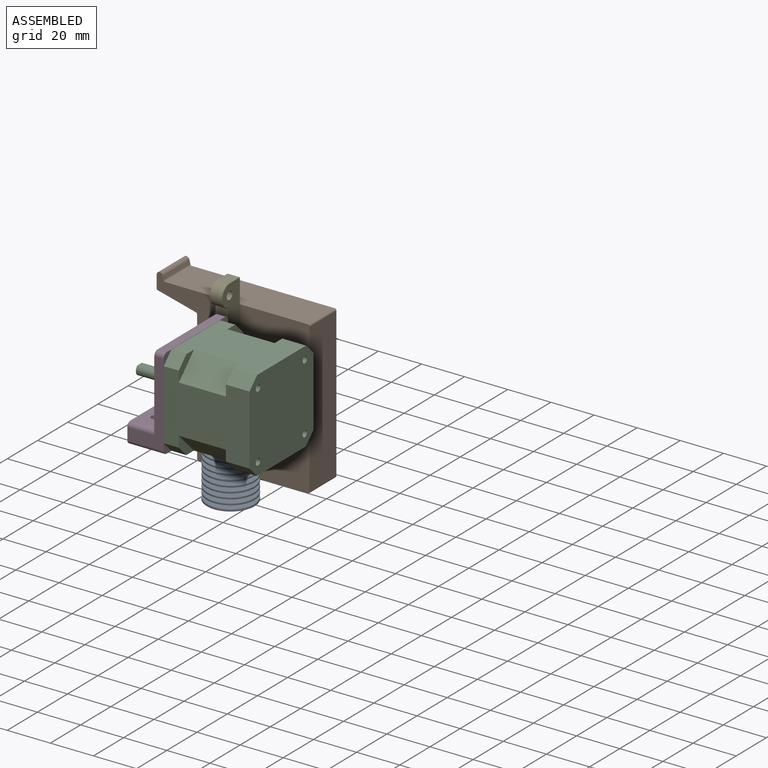
[diagram: assembled view]
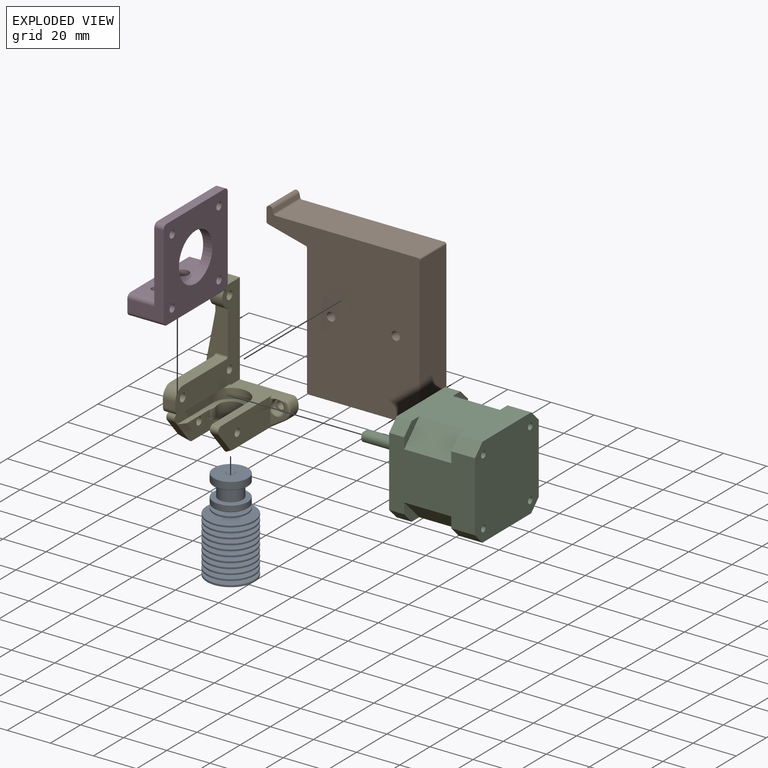
[diagram: exploded view]
GUIDED TOUR — MATED ASSEMBLY (Onshape document 1d870d6aa7221018737a88e3, AutoMate assembly 1d870d6aa7221018737a88e3_152bcbe4f24b7e919ed876c8_dd06332e72fe1bd58ef9c4aa_default)

This assembly has 5 components, labeled P0..P4 below (a component is one placed occurrence of a part; the same part can appear more than once), held together by 4 mates. A mate is a constraint between two components; its type names the relative motion it leaves free:
  FASTENED — locks the two components together rigidly (no relative motion).
Axis/direction vectors are unit vectors and 'through' points are millimeter coordinates, both in the assembly's world frame.

MATES
  1. FASTENED "Fastened 2": P4 <-> P3, direction (1.000, 0.000, 0.000) through (-53.84, -23.91, 33.60) mm
  2. FASTENED "Fastened 1": P0 <-> P4, direction (0.000, 0.000, 1.000) through (-47.59, -1.11, 20.00) mm
  3. FASTENED "Fastened 4": P3 <-> P2, direction (1.000, 0.000, 0.000) through (-37.04, -23.91, 33.60) mm
  4. FASTENED "Fastened 3": P1 <-> P4, direction (0.000, -1.000, 0.000) through (-62.59, 13.89, 22.90) mm

ASSEMBLY ORDER
  1. P4 — the base component [order verified]
  2. P0 [order verified]
  3. P3 [order verified]
  4. P2 [order verified]
  5. P1 [order verified]
(P0 verified with a relaxed clearance tolerance: the source model stores slight part interference there.)
Order-tag legend:
  [order verified] — this step's position reverses a verified removal order: the component was checked to insert without passing through the ones already placed.

Of the 5 components, 2 carry the full construction recipe — the FeatureScript program that regenerates the part's solid from scratch; the rest are supplied as boundary geometry only.
Each toured component is shown spotlighted twice — in the assembled view, then in the exploded view, where a leader line traces a displaced component back to its assembled socket (saturated green if recipe-attached, orange if geometry-only; every other component desaturated gray) — followed by its recipe or geometry summary and the mates that hold it.
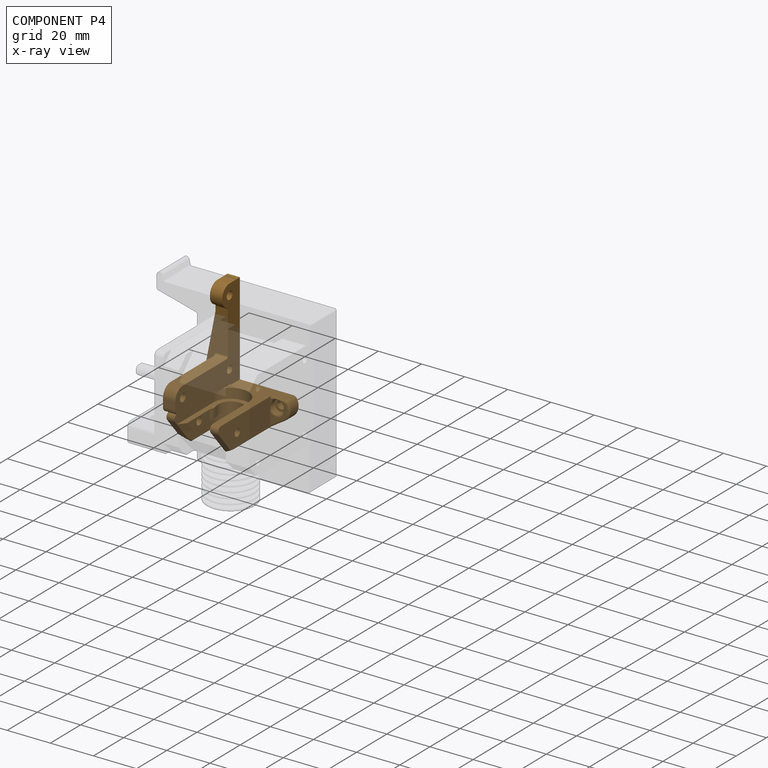
[diagram: component P4 — x-ray view]
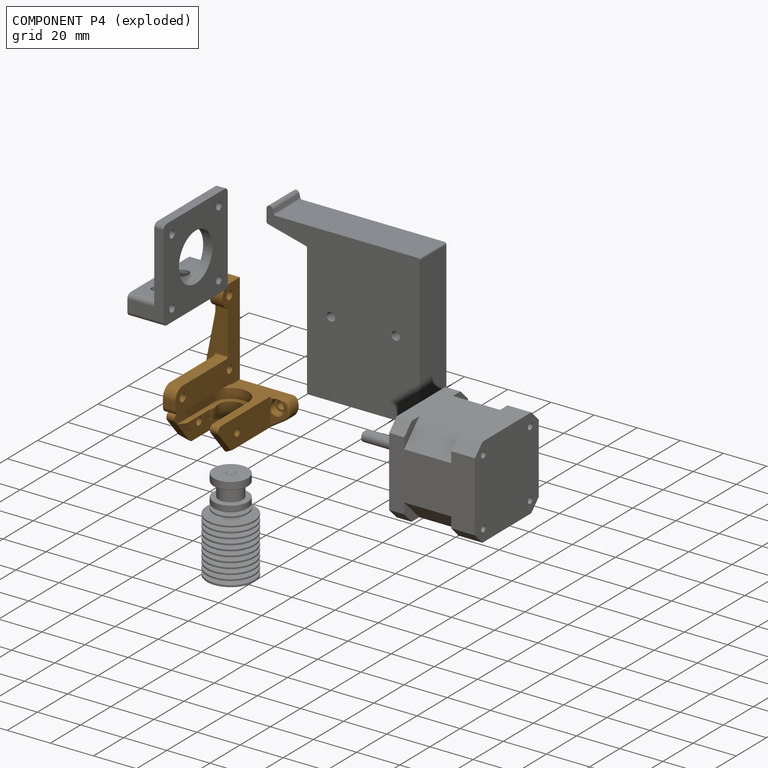
[diagram: component P4 — exploded]
COMPONENT P4 — geometry summary (no construction recipe available for this part):
  bounding box: 59.0 x 43.3 x 43.2 mm
  B-rep topology: 1 solid, 90 faces, 489 edges
  volume: 12778 mm^3 (12% of its bounding box)
Held by: FASTENED mate "Fastened 2" to P3; FASTENED mate "Fastened 1" to P0; FASTENED mate "Fastened 3" to P1.
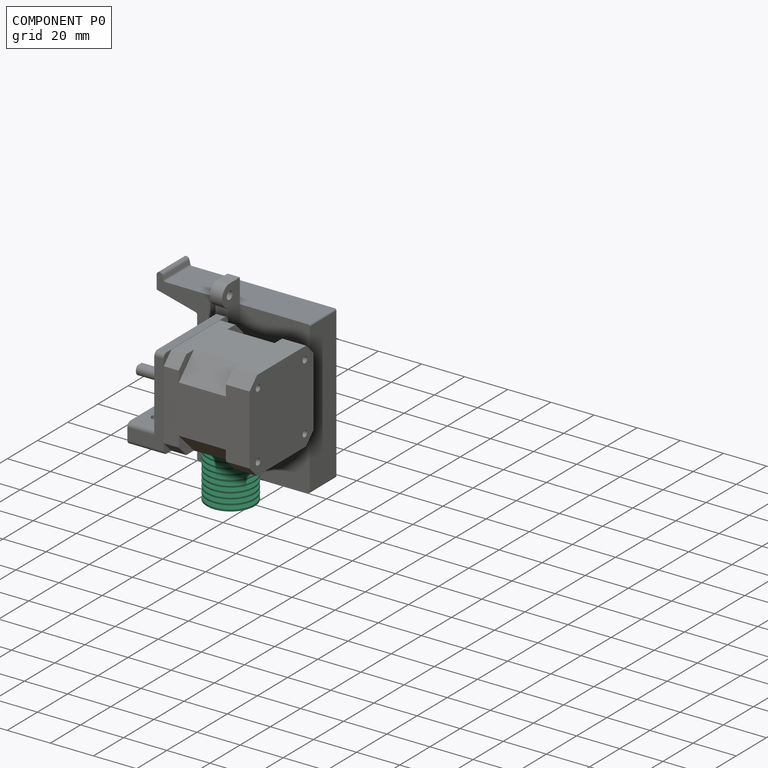
[diagram: component P0 — assembled]
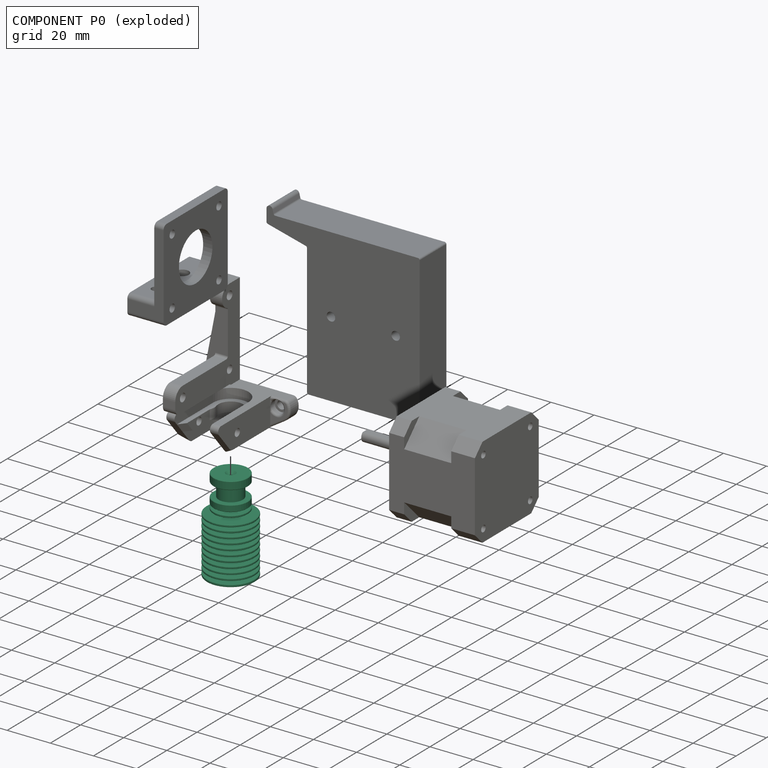
[diagram: component P0 — exploded]
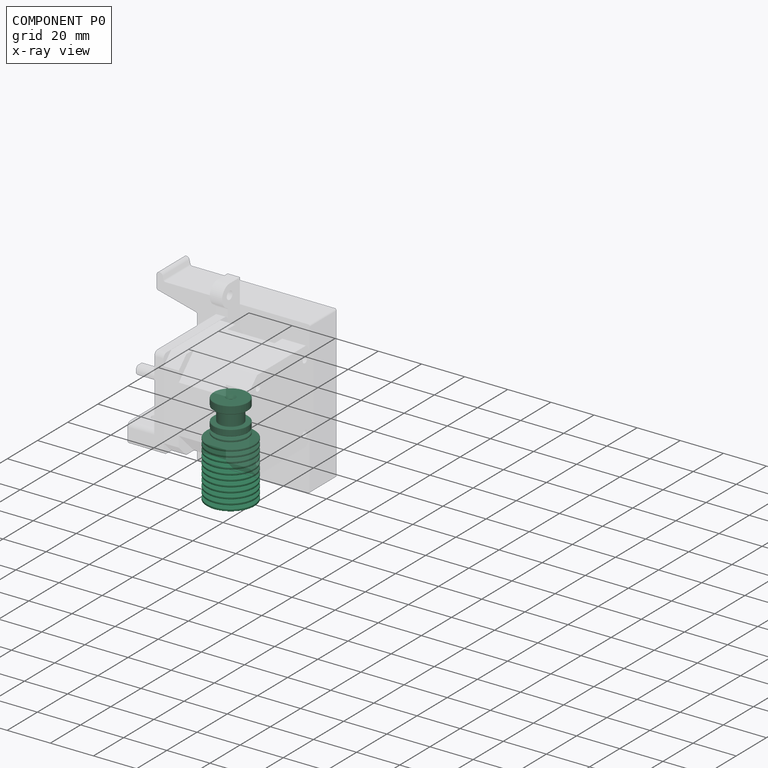
[diagram: component P0 — x-ray view]
COMPONENT P0 — recipe-attached (CADFS 00487966, mesh-verified: the recipe's output STEP matches this component's geometry to below the mesh-comparison resolution (tessellation chordal tolerance ~0.0798 mm)).
Held by: FASTENED mate "Fastened 1" to P4.
Construction recipe (FeatureScript — the CAD program that rebuilds this solid; sketch coordinates are in the units given by the * unit suffixes, e.g. mm):

FeatureScript 1560;
import(path : "onshape/std/geometry.fs", version : "1560.0");
import(path : "onshape/std/common.fs", version : "1560.0");
const mm = millimeter;
const VERTEX = EntityType.VERTEX;
const EDGE = EntityType.EDGE;
const FACE = EntityType.FACE;
const BODY = EntityType.BODY;
function v(x, y){return vector(x, y);}
function OD(order){return orderDisambiguation(order);}
function OSD(set){return originalSetDisambiguation(set);}
function TD(topology){return topologyDisambiguation(topology);}
function TDD(query){return trueDependencyDisambiguation(query);}
function sQuery(a, b, c) {return sketchEntityQuery(a, b, c);}

annotation { "Feature Type Name" : "Feature", "Feature Type Description" : "" }
export const myFeature = defineFeature(function(context is Context, id is Id, definition is map)
    precondition{}
    {
        {
            var Q0;
            Q0=qCreatedBy(makeId("Front.planeOp"),FACE);
            var sketch = newSketch(context, id + "F0", { "sketchPlane" : qUnion([Q0])});
            skLineSegment(sketch, "E0.bottom", {"start": v(11.15, 0) * mm, "end": v(-11.15, 0) * mm});
            skLineSegment(sketch, "E1", {"start": v(0, 42.9) * mm, "end": v(0, 0) * mm, "construction": true});
            skLineSegment(sketch, "E2", {"start": v(-11.15, 0) * mm, "end": v(-11.15, 1.15) * mm});
            skLineSegment(sketch, "E3", {"start": v(-11.15, 1.15) * mm, "end": v(-6.05, 1.15) * mm});
            skLineSegment(sketch, "E4", {"start": v(11.15, 1.15) * mm, "end": v(11.15, 0) * mm});
            skLineSegment(sketch, "E5.bottom", {"start": v(-11.15, 2.65) * mm, "end": v(-6.05, 2.65) * mm});
            skLineSegment(sketch, "E5.top", {"start": v(-11.15, 3.65) * mm, "end": v(-5.87, 3.65) * mm});
            skLineSegment(sketch, "E5.left", {"start": v(-11.15, 2.65) * mm, "end": v(-11.15, 3.65) * mm});
            skLineSegment(sketch, "E5.right", {"start": v(11.15, 2.65) * mm, "end": v(11.15, 3.65) * mm});
            skLineSegment(sketch, "E6", {"start": v(-6.05, 2.65) * mm, "end": v(-6.05, 1.15) * mm});
            skLineSegment(sketch, "E7", {"start": v(6.05, 2.65) * mm, "end": v(6.05, 1.15) * mm});
            skLineSegment(sketch, "E8.bottom", {"start": v(-11.15, 5.14) * mm, "end": v(-5.87, 5.14) * mm});
            skLineSegment(sketch, "E8.top", {"start": v(-11.15, 6.14) * mm, "end": v(-5.68, 6.14) * mm});
            skLineSegment(sketch, "E8.left", {"start": v(-11.15, 5.14) * mm, "end": v(-11.15, 6.14) * mm});
            skLineSegment(sketch, "E8.right", {"start": v(11.15, 5.14) * mm, "end": v(11.15, 6.14) * mm});
            skLineSegment(sketch, "E9.bottom", {"start": v(-11.15, 7.63) * mm, "end": v(-5.68, 7.63) * mm});
            skLineSegment(sketch, "E9.top", {"start": v(-11.15, 8.63) * mm, "end": v(-5.5, 8.63) * mm});
            skLineSegment(sketch, "E9.left", {"start": v(-11.15, 7.63) * mm, "end": v(-11.15, 8.64) * mm});
            skLineSegment(sketch, "E9.right", {"start": v(11.15, 7.63) * mm, "end": v(11.15, 8.64) * mm});
            skLineSegment(sketch, "E10.bottom", {"start": v(-11.15, 10.13) * mm, "end": v(-5.5, 10.13) * mm});
            skLineSegment(sketch, "E10.top", {"start": v(-11.15, 11.13) * mm, "end": v(-5.31, 11.13) * mm});
            skLineSegment(sketch, "E10.left", {"start": v(-11.15, 10.13) * mm, "end": v(-11.15, 11.13) * mm});
            skLineSegment(sketch, "E10.right", {"start": v(11.15, 10.13) * mm, "end": v(11.15, 11.13) * mm});
            skLineSegment(sketch, "E11.bottom", {"start": v(-11.15, 12.62) * mm, "end": v(-5.31, 12.62) * mm});
            skLineSegment(sketch, "E11.top", {"start": v(-11.15, 13.62) * mm, "end": v(-5.13, 13.62) * mm});
            skLineSegment(sketch, "E11.left", {"start": v(-11.15, 12.63) * mm, "end": v(-11.15, 13.62) * mm});
            skLineSegment(sketch, "E11.right", {"start": v(11.15, 12.63) * mm, "end": v(11.15, 13.62) * mm});
            skLineSegment(sketch, "E12.bottom", {"start": v(-11.15, 15.12) * mm, "end": v(-5.13, 15.12) * mm});
            skLineSegment(sketch, "E12.top", {"start": v(-11.15, 16.12) * mm, "end": v(-4.94, 16.12) * mm});
            skLineSegment(sketch, "E12.left", {"start": v(-11.15, 15.12) * mm, "end": v(-11.15, 16.12) * mm});
            skLineSegment(sketch, "E12.right", {"start": v(11.15, 15.12) * mm, "end": v(11.15, 16.12) * mm});
            skLineSegment(sketch, "E13.bottom", {"start": v(-11.15, 17.62) * mm, "end": v(-4.94, 17.62) * mm});
            skLineSegment(sketch, "E13.top", {"start": v(-11.15, 18.61) * mm, "end": v(-4.75, 18.61) * mm});
            skLineSegment(sketch, "E13.left", {"start": v(-11.15, 17.62) * mm, "end": v(-11.15, 18.62) * mm});
            skLineSegment(sketch, "E13.right", {"start": v(11.15, 17.62) * mm, "end": v(11.15, 18.62) * mm});
            skLineSegment(sketch, "E14.bottom", {"start": v(-11.15, 20.1) * mm, "end": v(-4.76, 20.1) * mm});
            skLineSegment(sketch, "E14.top", {"start": v(-11.15, 21.1) * mm, "end": v(-4.57, 21.1) * mm});
            skLineSegment(sketch, "E14.left", {"start": v(-11.15, 20.11) * mm, "end": v(-11.15, 21.1) * mm});
            skLineSegment(sketch, "E14.right", {"start": v(11.15, 20.11) * mm, "end": v(11.15, 21.1) * mm});
            skLineSegment(sketch, "E15.bottom", {"start": v(-11.15, 22.6) * mm, "end": v(-4.57, 22.6) * mm});
            skLineSegment(sketch, "E15.top", {"start": v(-11.15, 23.6) * mm, "end": v(-4.39, 23.6) * mm});
            skLineSegment(sketch, "E15.left", {"start": v(-11.15, 22.6) * mm, "end": v(-11.15, 23.6) * mm});
            skLineSegment(sketch, "E15.right", {"start": v(11.15, 22.6) * mm, "end": v(11.15, 23.6) * mm});
            skLineSegment(sketch, "E16.bottom", {"start": v(-11.15, 25.1) * mm, "end": v(-4.38, 25.1) * mm});
            skLineSegment(sketch, "E16.top", {"start": v(-11.15, 26.1) * mm, "end": v(-4.2, 26.1) * mm});
            skLineSegment(sketch, "E16.left", {"start": v(-11.15, 25.1) * mm, "end": v(-11.15, 26.1) * mm});
            skLineSegment(sketch, "E16.right", {"start": v(11.15, 25.1) * mm, "end": v(11.15, 26.1) * mm});
            skLineSegment(sketch, "E17", {"start": v(-5.87, 3.65) * mm, "end": v(-5.87, 5.14) * mm});
            skLineSegment(sketch, "E18", {"start": v(-5.68, 6.14) * mm, "end": v(-5.68, 7.64) * mm});
            skLineSegment(sketch, "E19", {"start": v(-5.5, 8.63) * mm, "end": v(-5.5, 10.13) * mm});
            skLineSegment(sketch, "E20", {"start": v(-5.31, 11.13) * mm, "end": v(-5.31, 12.63) * mm});
            skLineSegment(sketch, "E21", {"start": v(-5.12, 13.62) * mm, "end": v(-5.12, 15.12) * mm});
            skLineSegment(sketch, "E22", {"start": v(-4.94, 16.12) * mm, "end": v(-4.94, 17.62) * mm});
            skLineSegment(sketch, "E23", {"start": v(-4.75, 18.62) * mm, "end": v(-4.75, 20.11) * mm});
            skLineSegment(sketch, "E24", {"start": v(5.87, 3.65) * mm, "end": v(5.87, 5.14) * mm});
            skLineSegment(sketch, "E25", {"start": v(5.68, 6.14) * mm, "end": v(5.68, 7.64) * mm});
            skLineSegment(sketch, "E26", {"start": v(5.5, 8.64) * mm, "end": v(5.5, 10.13) * mm});
            skLineSegment(sketch, "E27", {"start": v(5.31, 11.13) * mm, "end": v(5.31, 12.62) * mm});
            skLineSegment(sketch, "E28", {"start": v(5.12, 13.63) * mm, "end": v(5.12, 15.12) * mm});
            skLineSegment(sketch, "E29", {"start": v(4.94, 16.12) * mm, "end": v(4.94, 17.62) * mm});
            skLineSegment(sketch, "E30", {"start": v(4.75, 18.62) * mm, "end": v(4.75, 20.11) * mm});
            skLineSegment(sketch, "E31", {"start": v(-4.57, 21.1) * mm, "end": v(-4.57, 22.6) * mm});
            skLineSegment(sketch, "E32", {"start": v(-4.38, 23.6) * mm, "end": v(-4.38, 25.1) * mm});
            skLineSegment(sketch, "E33", {"start": v(-4.2, 26.1) * mm, "end": v(-4.2, 27.6) * mm});
            skLineSegment(sketch, "E34", {"start": v(4.57, 21.1) * mm, "end": v(4.57, 22.6) * mm});
            skLineSegment(sketch, "E35", {"start": v(4.38, 23.6) * mm, "end": v(4.38, 25.1) * mm});
            skLineSegment(sketch, "E36", {"start": v(4.2, 26.1) * mm, "end": v(4.2, 27.6) * mm});
            skLineSegment(sketch, "E37", {"start": v(-6.05, 2.64) * mm, "end": v(-4.2, 27.6) * mm, "construction": true});
            skLineSegment(sketch, "E38.bottom", {"start": v(-8, 27.6) * mm, "end": v(-4.2, 27.6) * mm});
            skLineSegment(sketch, "E38.top", {"start": v(-8, 28.6) * mm, "end": v(-4.2, 28.6) * mm});
            skLineSegment(sketch, "E38.left", {"start": v(-8, 27.6) * mm, "end": v(-8, 28.6) * mm});
            skLineSegment(sketch, "E38.right", {"start": v(8, 27.6) * mm, "end": v(8, 28.6) * mm});
            skLineSegment(sketch, "E39.bottom", {"start": v(-8, 33) * mm, "end": v(-5.55, 33) * mm});
            skLineSegment(sketch, "E39.top", {"start": v(-8, 30) * mm, "end": v(-4.2, 30) * mm});
            skLineSegment(sketch, "E39.left", {"start": v(-8, 33) * mm, "end": v(-8, 30) * mm});
            skLineSegment(sketch, "E39.right", {"start": v(8, 33) * mm, "end": v(8, 30) * mm});
            skLineSegment(sketch, "E40", {"start": v(-4.2, 28.6) * mm, "end": v(-4.2, 30) * mm});
            skLineSegment(sketch, "E41", {"start": v(4.2, 28.6) * mm, "end": v(4.2, 30) * mm});
            skLineSegment(sketch, "E42.bottom", {"start": v(-8, 39.2) * mm, "end": v(-5.55, 39.2) * mm});
            skLineSegment(sketch, "E42.top", {"start": v(-8, 42.9) * mm, "end": v(-2.27, 42.9) * mm});
            skLineSegment(sketch, "E42.left", {"start": v(-8, 39.2) * mm, "end": v(-8, 42.9) * mm});
            skLineSegment(sketch, "E42.right", {"start": v(8, 39.2) * mm, "end": v(8, 42.9) * mm});
            skLineSegment(sketch, "E43.trimOffspring", {"start": v(5.55, 39.2) * mm, "end": v(8, 39.2) * mm});
            skLineSegment(sketch, "E44.trimOffspring", {"start": v(5.55, 33) * mm, "end": v(8, 33) * mm});
            skLineSegment(sketch, "E45.trimOffspring", {"start": v(4.2, 30) * mm, "end": v(8, 30) * mm});
            skLineSegment(sketch, "E46.trimOffspring", {"start": v(4.2, 28.6) * mm, "end": v(8, 28.6) * mm});
            skLineSegment(sketch, "E47.trimOffspring", {"start": v(4.2, 27.6) * mm, "end": v(8, 27.6) * mm});
            skLineSegment(sketch, "E48.trimOffspring", {"start": v(4.2, 26.1) * mm, "end": v(11.15, 26.1) * mm});
            skLineSegment(sketch, "E49.trimOffspring", {"start": v(4.38, 25.1) * mm, "end": v(11.15, 25.1) * mm});
            skLineSegment(sketch, "E50.trimOffspring", {"start": v(4.39, 23.6) * mm, "end": v(11.15, 23.6) * mm});
            skLineSegment(sketch, "E51.trimOffspring", {"start": v(4.57, 22.6) * mm, "end": v(11.15, 22.6) * mm});
            skLineSegment(sketch, "E52.trimOffspring", {"start": v(4.57, 21.1) * mm, "end": v(11.15, 21.1) * mm});
            skLineSegment(sketch, "E53.trimOffspring", {"start": v(4.75, 20.1) * mm, "end": v(11.15, 20.1) * mm});
            skLineSegment(sketch, "E54.trimOffspring", {"start": v(4.75, 18.61) * mm, "end": v(11.15, 18.61) * mm});
            skLineSegment(sketch, "E55.trimOffspring", {"start": v(4.94, 17.62) * mm, "end": v(11.15, 17.62) * mm});
            skLineSegment(sketch, "E56.trimOffspring", {"start": v(4.94, 16.12) * mm, "end": v(11.15, 16.12) * mm});
            skLineSegment(sketch, "E57.trimOffspring", {"start": v(5.12, 15.12) * mm, "end": v(11.15, 15.12) * mm});
            skLineSegment(sketch, "E58.trimOffspring", {"start": v(5.13, 13.62) * mm, "end": v(11.15, 13.62) * mm});
            skLineSegment(sketch, "E59.trimOffspring", {"start": v(5.31, 12.62) * mm, "end": v(11.15, 12.62) * mm});
            skLineSegment(sketch, "E60.trimOffspring", {"start": v(5.31, 11.13) * mm, "end": v(11.15, 11.13) * mm});
            skLineSegment(sketch, "E61.trimOffspring", {"start": v(5.5, 10.13) * mm, "end": v(11.15, 10.13) * mm});
            skLineSegment(sketch, "E62.trimOffspring", {"start": v(5.5, 8.63) * mm, "end": v(11.15, 8.63) * mm});
            skLineSegment(sketch, "E63.trimOffspring", {"start": v(5.68, 7.63) * mm, "end": v(11.15, 7.63) * mm});
            skLineSegment(sketch, "E64.trimOffspring", {"start": v(5.68, 6.14) * mm, "end": v(11.15, 6.14) * mm});
            skLineSegment(sketch, "E65.trimOffspring", {"start": v(5.87, 5.14) * mm, "end": v(11.15, 5.14) * mm});
            skLineSegment(sketch, "E66.trimOffspring", {"start": v(6.05, 2.65) * mm, "end": v(11.15, 2.65) * mm});
            skLineSegment(sketch, "E67.trimOffspring", {"start": v(6.05, 1.15) * mm, "end": v(11.15, 1.15) * mm});
            skLineSegment(sketch, "E68.trimOffspring", {"start": v(5.87, 3.65) * mm, "end": v(11.15, 3.65) * mm});
            skLineSegment(sketch, "E69", {"start": v(-2.27, 42.9) * mm, "end": v(-1, 41.63) * mm});
            skLineSegment(sketch, "E70", {"start": v(-1, 41.63) * mm, "end": v(-1, 19.8) * mm});
            skLineSegment(sketch, "E71", {"start": v(2.27, 42.9) * mm, "end": v(1, 41.63) * mm});
            skLineSegment(sketch, "E72", {"start": v(1, 41.63) * mm, "end": v(1, 19.8) * mm});
            skLineSegment(sketch, "E73.trimOffspring", {"start": v(2.27, 42.9) * mm, "end": v(8, 42.9) * mm});
            skLineSegment(sketch, "E74", {"start": v(-2.27, 42.9) * mm, "end": v(2.27, 42.9) * mm, "construction": true});
            skLineSegment(sketch, "E75", {"start": v(-4.2, 30) * mm, "end": v(4.2, 30) * mm, "construction": true});
            skLineSegment(sketch, "E76", {"start": v(-4.2, 28.6) * mm, "end": v(4.2, 28.6) * mm, "construction": true});
            skLineSegment(sketch, "E77", {"start": v(-4.2, 27.6) * mm, "end": v(4.2, 27.6) * mm, "construction": true});
            skLineSegment(sketch, "E78", {"start": v(-4.2, 26.1) * mm, "end": v(4.2, 26.1) * mm, "construction": true});
            skLineSegment(sketch, "E79", {"start": v(-4.38, 25.1) * mm, "end": v(4.38, 25.1) * mm, "construction": true});
            skLineSegment(sketch, "E80", {"start": v(-4.39, 23.6) * mm, "end": v(4.39, 23.6) * mm, "construction": true});
            skLineSegment(sketch, "E81", {"start": v(-4.57, 22.6) * mm, "end": v(4.57, 22.6) * mm, "construction": true});
            skLineSegment(sketch, "E82", {"start": v(-4.57, 21.1) * mm, "end": v(4.57, 21.1) * mm, "construction": true});
            skLineSegment(sketch, "E83", {"start": v(-4.76, 20.1) * mm, "end": v(4.75, 20.1) * mm, "construction": true});
            skLineSegment(sketch, "E84", {"start": v(-4.75, 18.61) * mm, "end": v(4.75, 18.61) * mm, "construction": true});
            skLineSegment(sketch, "E85", {"start": v(-4.94, 17.62) * mm, "end": v(4.94, 17.62) * mm, "construction": true});
            skLineSegment(sketch, "E86", {"start": v(-4.94, 16.12) * mm, "end": v(4.94, 16.12) * mm, "construction": true});
            skLineSegment(sketch, "E87", {"start": v(-5.13, 15.12) * mm, "end": v(5.12, 15.12) * mm, "construction": true});
            skLineSegment(sketch, "E88", {"start": v(-5.13, 13.62) * mm, "end": v(5.13, 13.62) * mm, "construction": true});
            skLineSegment(sketch, "E89", {"start": v(-5.31, 12.62) * mm, "end": v(5.31, 12.62) * mm, "construction": true});
            skLineSegment(sketch, "E90", {"start": v(-5.31, 11.13) * mm, "end": v(5.31, 11.13) * mm, "construction": true});
            skLineSegment(sketch, "E91", {"start": v(-5.5, 10.13) * mm, "end": v(5.5, 10.13) * mm, "construction": true});
            skLineSegment(sketch, "E92", {"start": v(-5.5, 8.63) * mm, "end": v(5.5, 8.63) * mm, "construction": true});
            skLineSegment(sketch, "E93", {"start": v(-5.68, 7.63) * mm, "end": v(5.68, 7.63) * mm, "construction": true});
            skLineSegment(sketch, "E94", {"start": v(-5.68, 6.14) * mm, "end": v(5.68, 6.14) * mm, "construction": true});
            skLineSegment(sketch, "E95", {"start": v(-5.87, 5.14) * mm, "end": v(5.87, 5.14) * mm, "construction": true});
            skLineSegment(sketch, "E96", {"start": v(-5.87, 3.65) * mm, "end": v(5.87, 3.65) * mm, "construction": true});
            skLineSegment(sketch, "E97", {"start": v(-6.05, 2.65) * mm, "end": v(6.05, 2.65) * mm, "construction": true});
            skLineSegment(sketch, "E98", {"start": v(-6.05, 1.15) * mm, "end": v(6.05, 1.15) * mm, "construction": true});
            skLineSegment(sketch, "E99.left", {"start": v(-3.5, 0) * mm, "end": v(-3.5, 17.3) * mm});
            skLineSegment(sketch, "E99.right", {"start": v(3.5, 0) * mm, "end": v(3.5, 17.3) * mm});
            skLineSegment(sketch, "E100", {"start": v(3.5, 17.3) * mm, "end": v(1, 19.8) * mm});
            skLineSegment(sketch, "E101", {"start": v(-3.5, 17.3) * mm, "end": v(-1, 19.8) * mm});
            skLineSegment(sketch, "E102", {"start": v(-5.55, 33) * mm, "end": v(-5.55, 39.2) * mm});
            skLineSegment(sketch, "E103", {"start": v(5.55, 33) * mm, "end": v(5.55, 39.2) * mm});
            skLineSegment(sketch, "E104", {"start": v(-5.55, 33) * mm, "end": v(5.55, 33) * mm, "construction": true});
            skLineSegment(sketch, "E105", {"start": v(-5.55, 39.2) * mm, "end": v(5.55, 39.2) * mm, "construction": true});
            skSolve(sketch);
        }
        {
            var Q0;
            {var subQ0=sQuery(id+"F0.wireOp",EDGE,"E2");Q0=makeQuery(id+"F0.imprint","IMPRINT",FACE,{"disambiguationData":[TD([[makeQuery(id+"F0.imprint","IMPRINT",EDGE,{"derivedFrom":subQ0}),-1.0]])]});}
            var Q1;
            Q1=sQuery(id+"F0.wireOp",EDGE,"E1");
            revolve(context, id + "F1", {"surfaceOperationType" : NewSurfaceOperationType.NEW, "entities" : qUnion([Q0]), "axis" : qUnion([Q1]), "revolveType" : RevolveType.FULL});
        }
        {
            var Q0;
            Q0=makeQuery(id+"F1.opRevolve","SWEPT_FACE",FACE,{"disambiguationData":[OSD([sQuery(id+"F0.wireOp",EDGE,"E42.left")])]});
            var Q1;
            Q1=makeQuery(id+"F1.opRevolve","SWEPT_FACE",FACE,{"disambiguationData":[OSD([sQuery(id+"F0.wireOp",EDGE,"E39.left")])]});
            var Q2;
            Q2=makeQuery(id+"F1.opRevolve","SWEPT_FACE",FACE,{"disambiguationData":[OSD([sQuery(id+"F0.wireOp",EDGE,"E38.left")])]});
            var Q3;
            Q3=makeQuery(id+"F1.opRevolve","SWEPT_FACE",FACE,{"disambiguationData":[OSD([sQuery(id+"F0.wireOp",EDGE,"E16.left")])]});
            var Q4;
            Q4=makeQuery(id+"F1.opRevolve","SWEPT_FACE",FACE,{"disambiguationData":[OSD([sQuery(id+"F0.wireOp",EDGE,"E15.left")])]});
            var Q5;
            Q5=makeQuery(id+"F1.opRevolve","SWEPT_FACE",FACE,{"disambiguationData":[OSD([sQuery(id+"F0.wireOp",EDGE,"E14.left")])]});
            var Q6;
            Q6=makeQuery(id+"F1.opRevolve","SWEPT_FACE",FACE,{"disambiguationData":[OSD([sQuery(id+"F0.wireOp",EDGE,"E13.left")])]});
            var Q7;
            Q7=makeQuery(id+"F1.opRevolve","SWEPT_FACE",FACE,{"disambiguationData":[OSD([sQuery(id+"F0.wireOp",EDGE,"E12.left")])]});
            var Q8;
            Q8=makeQuery(id+"F1.opRevolve","SWEPT_FACE",FACE,{"disambiguationData":[OSD([sQuery(id+"F0.wireOp",EDGE,"E11.left")])]});
            var Q9;
            Q9=makeQuery(id+"F1.opRevolve","SWEPT_FACE",FACE,{"disambiguationData":[OSD([sQuery(id+"F0.wireOp",EDGE,"E10.left")])]});
            var Q10;
            Q10=makeQuery(id+"F1.opRevolve","SWEPT_FACE",FACE,{"disambiguationData":[OSD([sQuery(id+"F0.wireOp",EDGE,"E9.left")])]});
            var Q11;
            Q11=makeQuery(id+"F1.opRevolve","SWEPT_FACE",FACE,{"disambiguationData":[OSD([sQuery(id+"F0.wireOp",EDGE,"E8.left")])]});
            var Q12;
            Q12=makeQuery(id+"F1.opRevolve","SWEPT_FACE",FACE,{"disambiguationData":[OSD([sQuery(id+"F0.wireOp",EDGE,"E5.left")])]});
            var Q13;
            Q13=makeQuery(id+"F1.opRevolve","SWEPT_FACE",FACE,{"disambiguationData":[OSD([sQuery(id+"F0.wireOp",EDGE,"E2")])]});
            chamfer(context, id + "F2", {"entities" : qUnion([Q0, Q1, Q2, Q3, Q4, Q5, Q6, Q7, Q8, Q9, Q10, Q11, Q12, Q13]), "width" : 0.2 * mm, "tangentPropagation" : true});
        }
    });
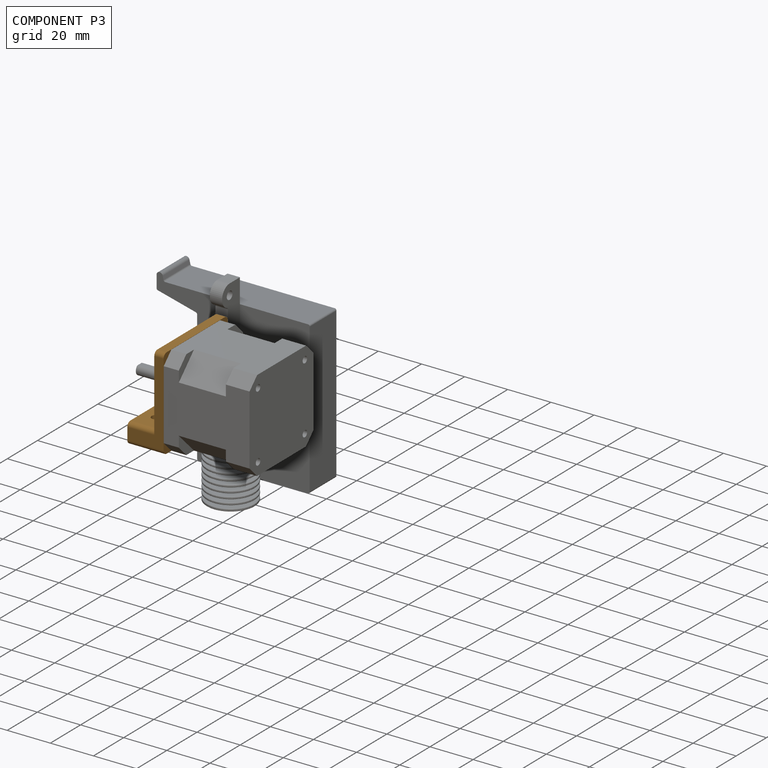
[diagram: component P3 — assembled]
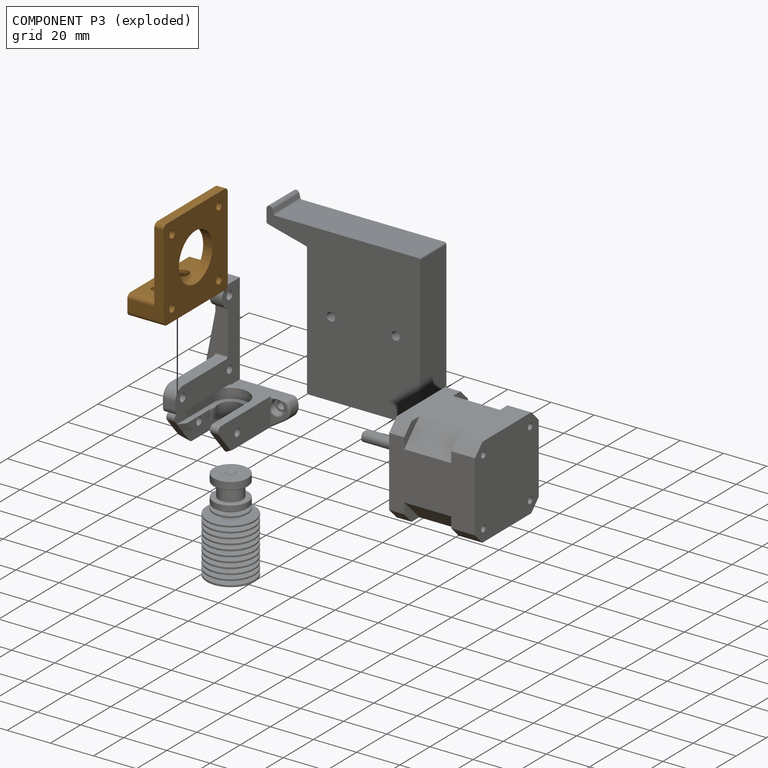
[diagram: component P3 — exploded]
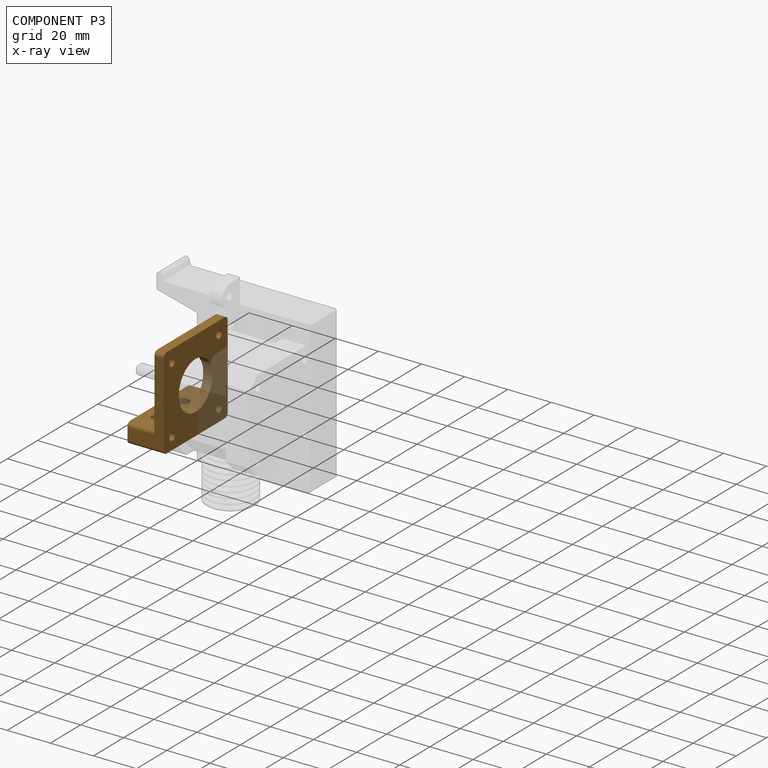
[diagram: component P3 — x-ray view]
COMPONENT P3 — geometry summary (no construction recipe available for this part):
  bounding box: 42.5 x 42.5 x 16.8 mm
  B-rep topology: 1 solid, 25 faces, 140 edges
  volume: 10079 mm^3 (33% of its bounding box)
Held by: FASTENED mate "Fastened 2" to P4; FASTENED mate "Fastened 4" to P2.
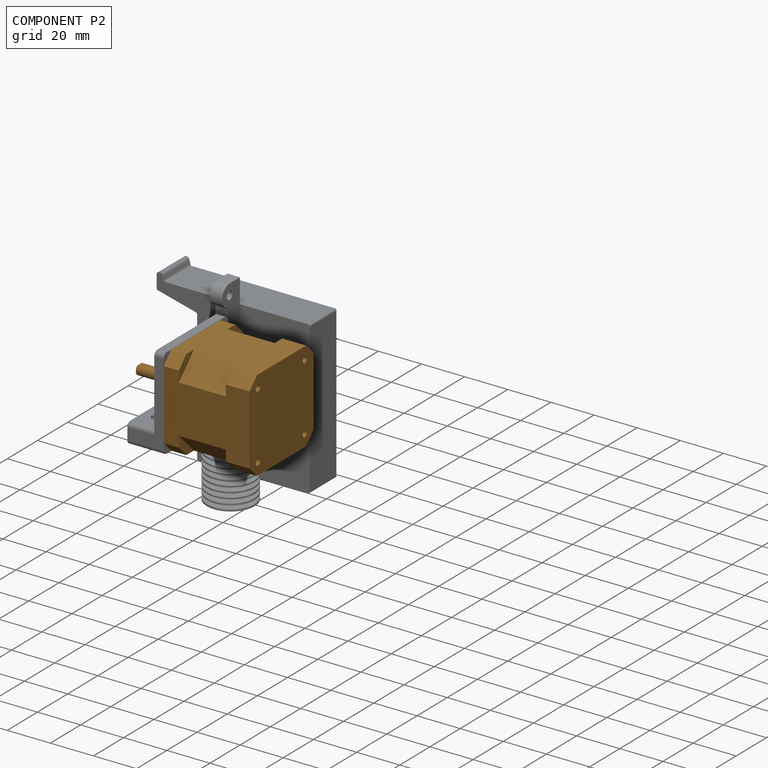
[diagram: component P2 — assembled]
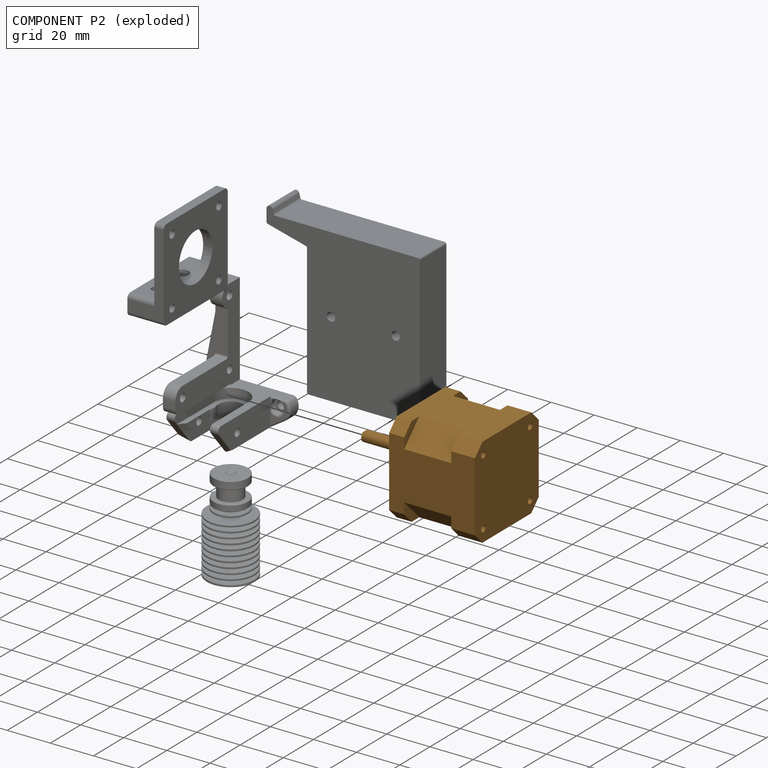
[diagram: component P2 — exploded]
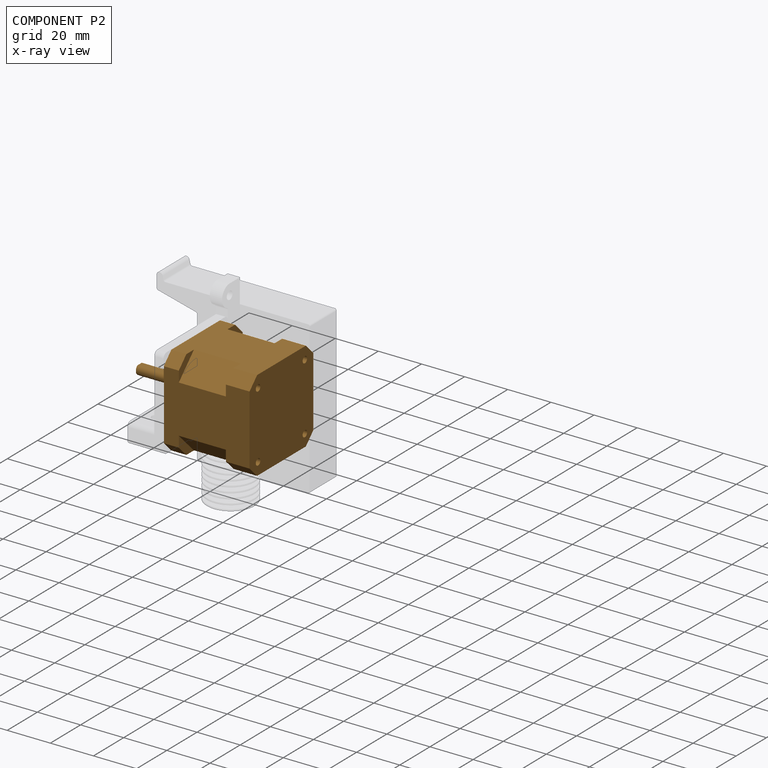
[diagram: component P2 — x-ray view]
COMPONENT P2 — geometry summary (no construction recipe available for this part):
  bounding box: 65.8 x 42.3 x 42.3 mm
  B-rep topology: 1 solid, 48 faces, 216 edges
  volume: 66915 mm^3 (57% of its bounding box)
  symmetry: mirror-symmetric across its x mid-plane
Held by: FASTENED mate "Fastened 4" to P3.
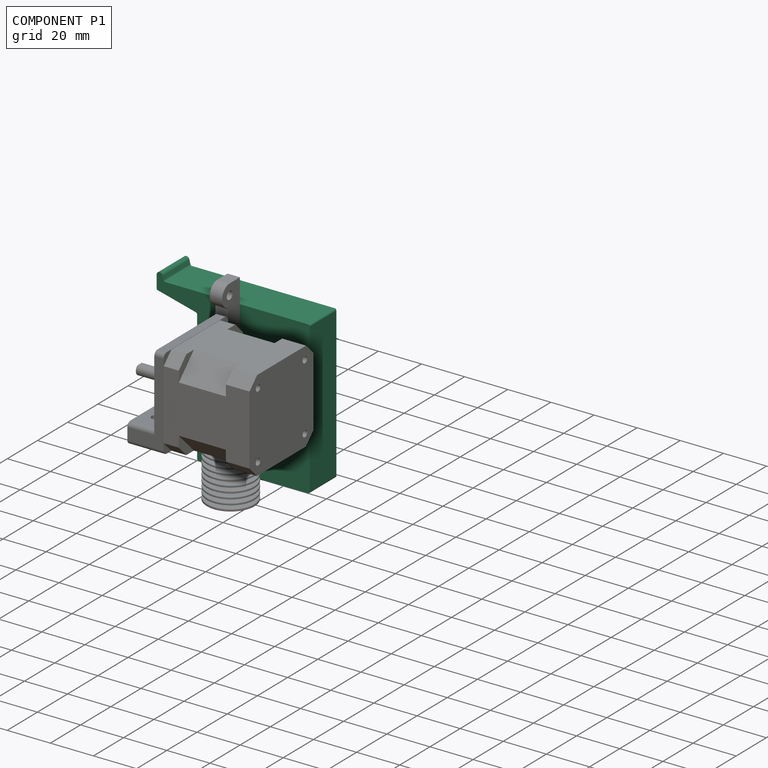
[diagram: component P1 — assembled]
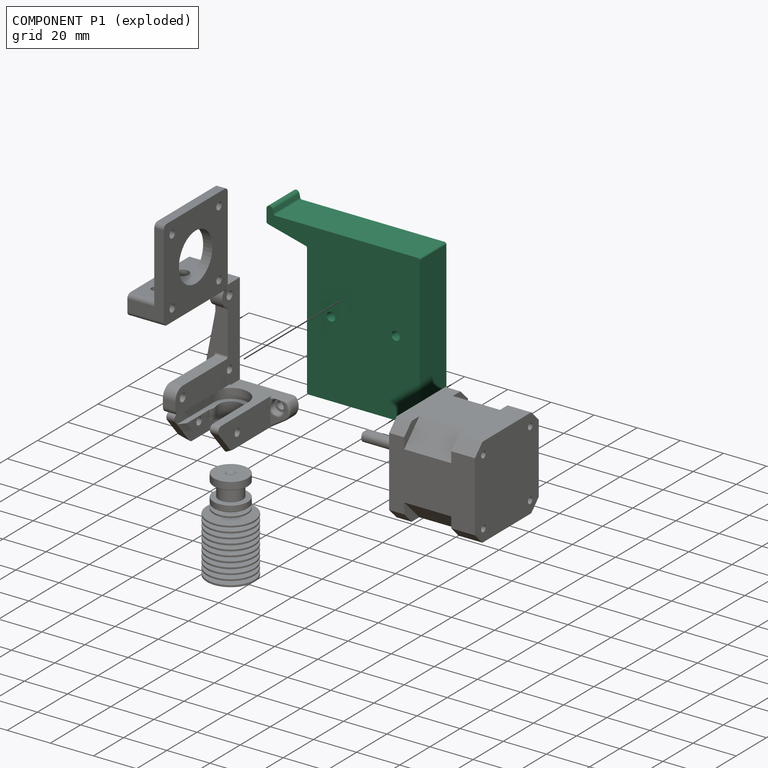
[diagram: component P1 — exploded]
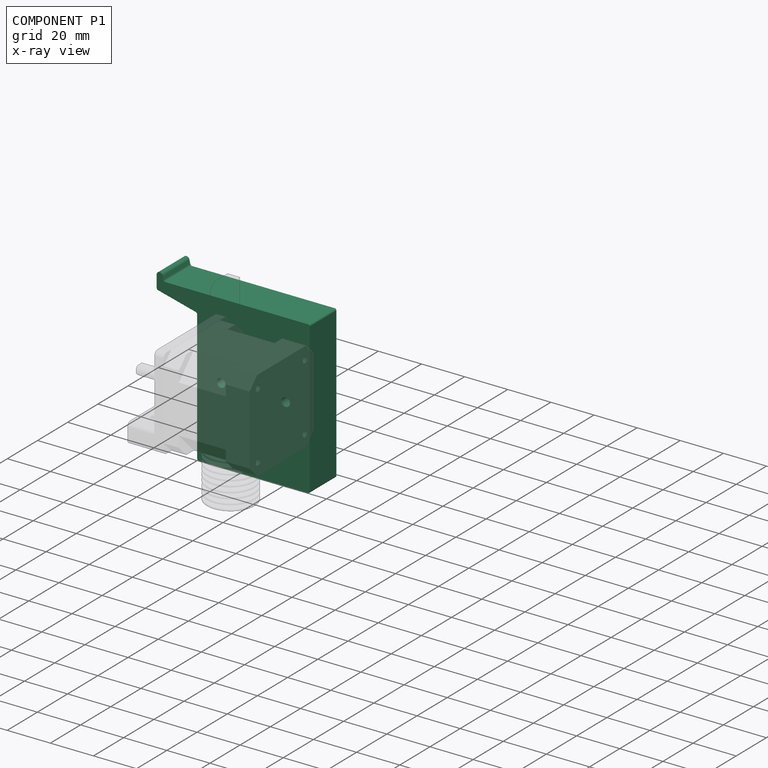
[diagram: component P1 — x-ray view]
COMPONENT P1 — recipe-attached (CADFS 00487957, mesh-verified: the recipe's output STEP matches this component's geometry to below the mesh-comparison resolution (tessellation chordal tolerance ~0.156 mm)).
Held by: FASTENED mate "Fastened 3" to P4.
Construction recipe (FeatureScript — the CAD program that rebuilds this solid; sketch coordinates are in the units given by the * unit suffixes, e.g. mm):

FeatureScript 1560;
import(path : "onshape/std/geometry.fs", version : "1560.0");
import(path : "onshape/std/common.fs", version : "1560.0");
const mm = millimeter;
const VERTEX = EntityType.VERTEX;
const EDGE = EntityType.EDGE;
const FACE = EntityType.FACE;
const BODY = EntityType.BODY;
function v(x, y){return vector(x, y);}
function OD(order){return orderDisambiguation(order);}
function OSD(set){return originalSetDisambiguation(set);}
function TD(topology){return topologyDisambiguation(topology);}
function TDD(query){return trueDependencyDisambiguation(query);}
function sQuery(a, b, c) {return sketchEntityQuery(a, b, c);}

annotation { "Feature Type Name" : "Feature", "Feature Type Description" : "" }
export const myFeature = defineFeature(function(context is Context, id is Id, definition is map)
    precondition{}
    {
        {
            var Q0;
            Q0=qCreatedBy(makeId("Front.planeOp"),FACE);
            var sketch = newSketch(context, id + "F0", { "sketchPlane" : qUnion([Q0])});
            skLineSegment(sketch, "E0.bottom", {"start": v(-41.5, 35.4) * mm, "end": v(26.1, 35.4) * mm});
            skLineSegment(sketch, "E0.top", {"start": v(-26.1, -35.4) * mm, "end": v(26.1, -35.4) * mm});
            skLineSegment(sketch, "E0.left", {"start": v(-26.1, 26.4) * mm, "end": v(-26.1, -35.4) * mm});
            skLineSegment(sketch, "E0.right", {"start": v(26.1, 35.4) * mm, "end": v(26.1, -35.4) * mm});
            skPoint(sketch, "E0.middle", {"position": v(0, 0) * mm});
            skCircle(sketch, "E1", {"center": v(-15, 0) * mm, "radius": 2 * mm});
            skCircle(sketch, "E2", {"center": v(15, 0) * mm, "radius": 2 * mm});
            skLineSegment(sketch, "E3", {"start": v(-41.5, 35.4) * mm, "end": v(-42.3, 38.9) * mm});
            skLineSegment(sketch, "E4", {"start": v(-42.3, 38.9) * mm, "end": v(-44.9, 38.9) * mm});
            skLineSegment(sketch, "E5", {"start": v(-44.9, 38.9) * mm, "end": v(-44.9, 31.2) * mm});
            skLineSegment(sketch, "E6", {"start": v(-44.9, 31.2) * mm, "end": v(-26.1, 26.4) * mm});
            skLineSegment(sketch, "E7", {"start": v(-26.1, 0) * mm, "end": v(26.1, 0) * mm, "construction": true});
            skLineSegment(sketch, "E8", {"start": v(0, 35.4) * mm, "end": v(0, -35.4) * mm, "construction": true});
            skLineSegment(sketch, "E9", {"start": v(-15, -2) * mm, "end": v(-15, 2) * mm, "construction": true});
            skSolve(sketch);
        }
        {
            var Q0;
            Q0=makeQuery(id+"F0.imprint","IMPRINT",FACE,{"disambiguationData":[TD([[makeQuery(id+"F0.imprint","IMPRINT",EDGE,{"derivedFrom":sQuery(id+"F0.wireOp",EDGE,"E0.bottom")}),-1.0]])]});
            extrude(context, id + "F1", {"entities" : qUnion([Q0]), "oppositeDirection" : true, "depth" : 17.7 * mm});
        }
        {
            var Q0;
            Q0=makeQuery(id+"F1.opExtrude","SWEPT_EDGE",EDGE,{"disambiguationData":[OSD([sQuery(id+"F0.wireOp",EDGE,"E4"),sQuery(id+"F0.wireOp",EDGE,"E5")])]});
            var Q1;
            Q1=makeQuery(id+"F1.opExtrude","SWEPT_EDGE",EDGE,{"disambiguationData":[OSD([sQuery(id+"F0.wireOp",EDGE,"E3"),sQuery(id+"F0.wireOp",EDGE,"E4")])]});
            fillet(context, id + "F2", {"entities" : qUnion([Q0, Q1]), "radius" : 1.5 * mm, "tangentPropagation" : true, "allowEdgeOverflow" : false});
        }
        {
            var Q0;
            Q0=makeQuery(id+"F1.opExtrude","SWEPT_EDGE",EDGE,{"disambiguationData":[OSD([sQuery(id+"F0.wireOp",EDGE,"E0.bottom"),sQuery(id+"F0.wireOp",EDGE,"E3")])]});
            var Q1;
            Q1=makeQuery(id+"F1.opExtrude","SWEPT_EDGE",EDGE,{"disambiguationData":[OSD([sQuery(id+"F0.wireOp",EDGE,"E0.bottom"),sQuery(id+"F0.wireOp",EDGE,"E0.right")])]});
            var Q2;
            Q2=makeQuery(id+"F1.opExtrude","SWEPT_EDGE",EDGE,{"disambiguationData":[OSD([sQuery(id+"F0.wireOp",EDGE,"E0.top"),sQuery(id+"F0.wireOp",EDGE,"E0.right")])]});
            var Q3;
            Q3=makeQuery(id+"F1.opExtrude","SWEPT_EDGE",EDGE,{"disambiguationData":[OSD([sQuery(id+"F0.wireOp",EDGE,"E5"),sQuery(id+"F0.wireOp",EDGE,"E6")])]});
            var Q4;
            Q4=makeQuery(id+"F1.opExtrude","SWEPT_EDGE",EDGE,{"disambiguationData":[OSD([sQuery(id+"F0.wireOp",EDGE,"E0.left"),sQuery(id+"F0.wireOp",EDGE,"E6")])]});
            var Q5;
            Q5=makeQuery(id+"F1.opExtrude","SWEPT_EDGE",EDGE,{"disambiguationData":[OSD([sQuery(id+"F0.wireOp",EDGE,"E0.top"),sQuery(id+"F0.wireOp",EDGE,"E0.left")])]});
            fillet(context, id + "F3", {"entities" : qUnion([Q0, Q1, Q2, Q3, Q4, Q5]), "radius" : 0.8 * mm, "tangentPropagation" : true, "allowEdgeOverflow" : false});
        }
    });
PROVENANCE & LICENSES
Assembly (occurrences, transforms, mates, per-part STEP geometry): AutoMate dataset, Zenodo record 7776208, CC0.
Construction recipes: CADFS (HuggingFace VladPyatov/CADFS, CC-BY-4.0, layered over the ABC dataset), FeatureScript reconstruction programs keyed by ABC model id.
Join: ABC meta listings map ABC model id -> Onshape documentId; within a shared document, parts are matched by geometric signature (bounding-box dims + volume at 0.1% relative tolerance, exact B-rep face/solid counts).
Verification: 2 of this assembly's 5 components carry a recipe attachment, and every attachment is mesh-verified: the CADFS STEP and the AutoMate member STEP were compared as meshes in their shared local frame (symmetric sampled-point-to-mesh distance); worst across the 2 attachments: below the mesh-comparison resolution (tessellation chordal tolerance ~0.156 mm) on a 104 mm part.
Renders: orthographic iso camera (az 35 / el 25); the floor grid conveys scale (grid pitch printed in each image; no ruler). In the exploded view each component is displaced by its stored offset vector: the offsets alone carry the explosion direction (mate normal/axis signs are not orientation cues and do not encode it), and separation distances are assigned per mate-chain, not proportionally to assembly-order depth.
